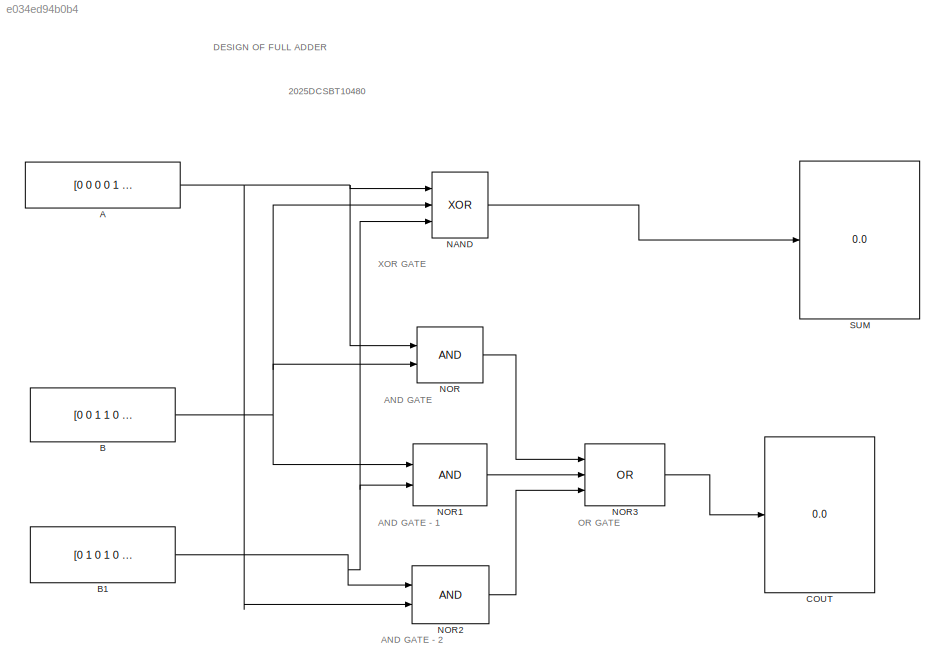
MODEL slx_e034ed94b0b4
KIND model
CONFIG AbsTol = auto
CONFIG EnableMultiTasking = off
CONFIG FixedStep = auto
CONFIG MaxStep = auto
CONFIG MinStep = auto
CONFIG RelTol = 1e-3
CONFIG SampleTimeConstraint = Unconstrained
CONFIG SolverName = VariableStepAuto
CONFIG StartTime = 0.0
CONFIG StopTime = 10.0
BLOCK [Constant] A
  Value = [0 0 0 0 1 1 1 1]
BLOCK [Constant] B
  Value = [0 0 1 1 0 0 1 1]
BLOCK [Constant] B1
  Value = [0 1 0 1 0 1 0 1]
BLOCK [Display] COUT
  Decimation = 8
BLOCK [Logic] NAND
  AllPortsSameDT = off
  IconShape = distinctive
  Inputs = 3
  Operator = XOR
  OutDataTypeStr = boolean
BLOCK [Logic] NOR
  AllPortsSameDT = off
  IconShape = distinctive
  OutDataTypeStr = boolean
BLOCK [Logic] NOR1
  AllPortsSameDT = off
  IconShape = distinctive
  OutDataTypeStr = boolean
BLOCK [Logic] NOR2
  AllPortsSameDT = off
  IconShape = distinctive
  OutDataTypeStr = boolean
BLOCK [Logic] NOR3
  AllPortsSameDT = off
  IconShape = distinctive
  Inputs = 3
  Operator = OR
  OutDataTypeStr = boolean
BLOCK [Display] SUM
  Decimation = 8
ANNOTATION (root): AND GATE - 1
ANNOTATION (root): AND GATE - 2
ANNOTATION (root): AND GATE
ANNOTATION (root): OR GATE
ANNOTATION (root): XOR GATE
ANNOTATION (root): 2025DCSBT10480
ANNOTATION (root): DESIGN OF FULL ADDER
NET A:1 -> NAND:1, NOR2:2, NOR:1
NET B1:1 -> NAND:3, NOR1:2, NOR2:1
NET B:1 -> NAND:2, NOR1:1, NOR:2
LINE NAND:1 -> SUM:1
LINE NOR1:1 -> NOR3:2
LINE NOR2:1 -> NOR3:3
LINE NOR3:1 -> COUT:1
LINE NOR:1 -> NOR3:1
note: NET lines group one-source signal fan-out (src -> all destinations, sorted); 1:1 wires keep LINE
